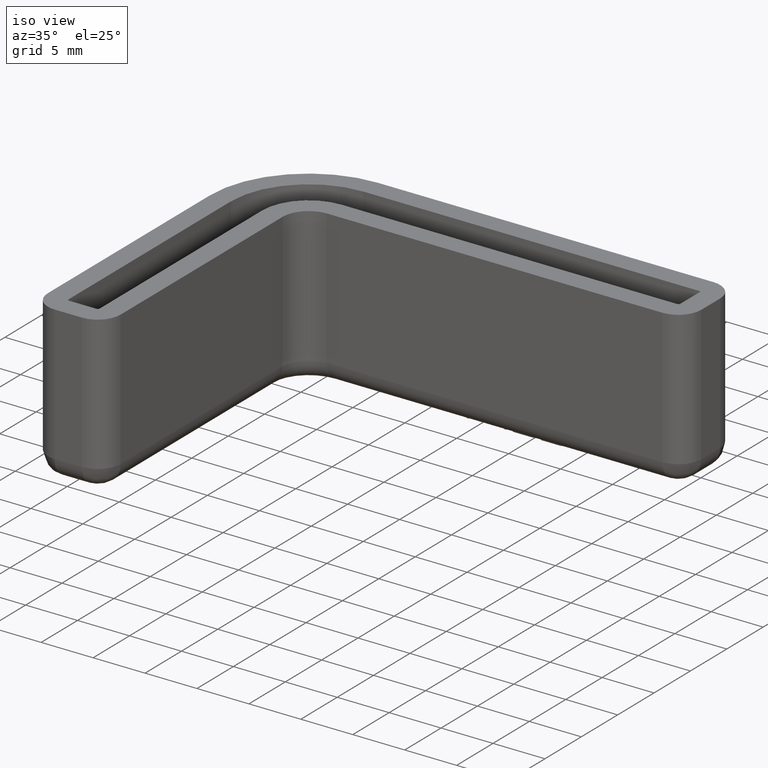
[diagram: clean part render]
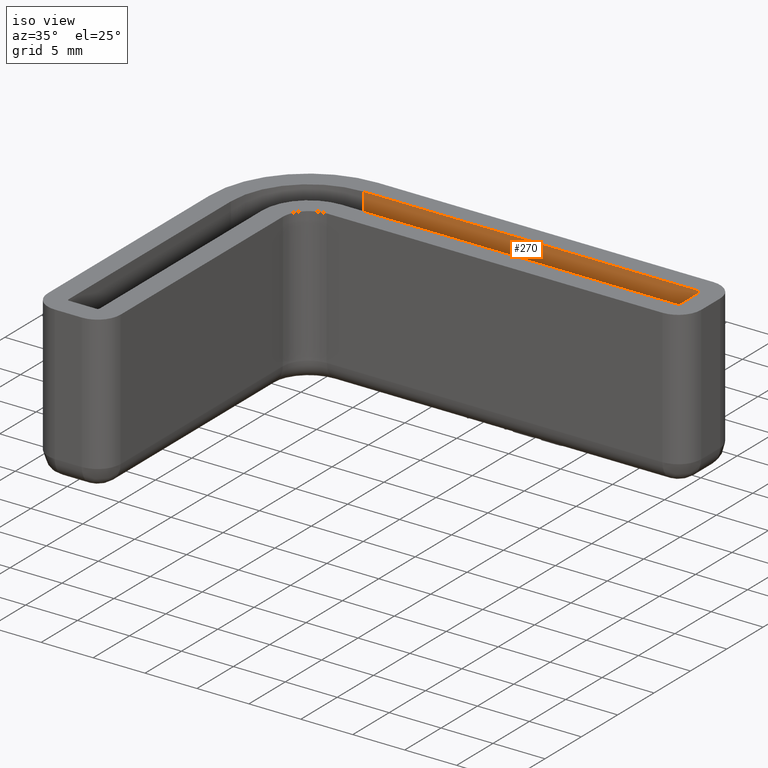
[diagram: same view with one face highlighted and labeled with its STEP entity id]
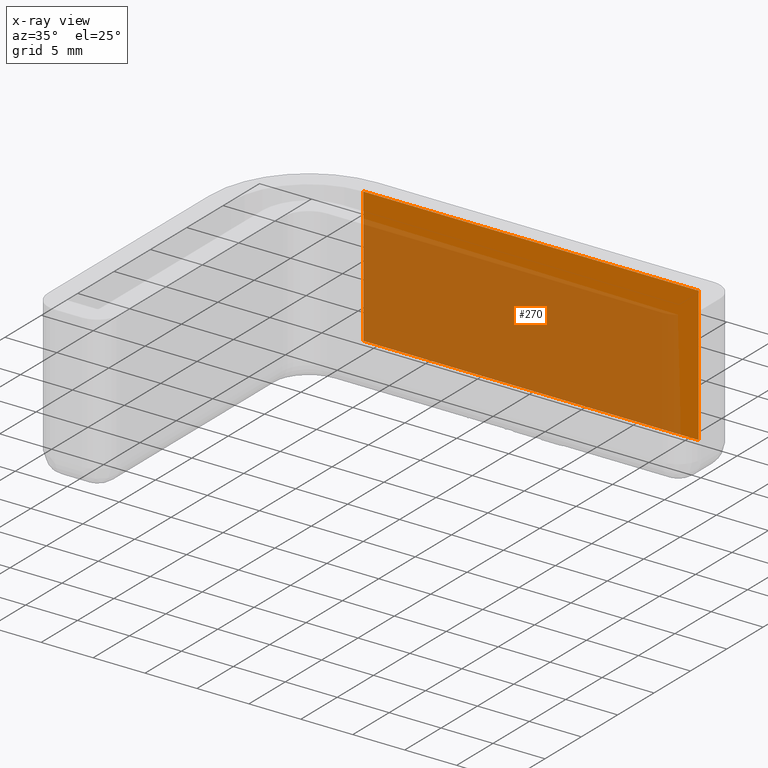
[diagram: x-ray of the same camera — body ghosted, the highlighted face saturated]
A machine part, iso view. The second image highlights one B-rep face of the part: STEP entity #270.
The next image is the same camera in x-ray: the body ghosted, the highlighted face saturated — about 76% of this face is hidden behind the body in this view.
In plain terms, the highlighted planar face has unit normal (0, -1, 0).
Its self-contained STEP definition (entity closure, byte-faithful):
#270 = ADVANCED_FACE( '', ( #332 ), #333, .T. );
#332 = FACE_OUTER_BOUND( '', #448, .T. );
#333 = PLANE( '', #449 );
#448 = EDGE_LOOP( '', ( #696, #697, #698, #699 ) );
#449 = AXIS2_PLACEMENT_3D( '', #700, #701, #702 );
#696 = ORIENTED_EDGE( '', *, *, #1194, .T. );
#697 = ORIENTED_EDGE( '', *, *, #1195, .F. );
#698 = ORIENTED_EDGE( '', *, *, #1191, .F. );
#699 = ORIENTED_EDGE( '', *, *, #1176, .F. );
#700 = CARTESIAN_POINT( '', ( 39.8000000000000, 0.000000000000000, 30.0000000000000 ) );
#701 = DIRECTION( '', ( 0.000000000000000, -1.00000000000000, 0.000000000000000 ) );
#702 = DIRECTION( '', ( 1.00000000000000, 0.000000000000000, 0.000000000000000 ) );
#1176 = EDGE_CURVE( '', #1313, #1314, #1315, .T. );
#1191 = EDGE_CURVE( '', #1314, #1342, #1343, .T. );
#1194 = EDGE_CURVE( '', #1313, #1347, #1348, .T. );
#1195 = EDGE_CURVE( '', #1342, #1347, #1349, .T. );
#1313 = VERTEX_POINT( '', #1524 );
#1314 = VERTEX_POINT( '', #1525 );
#1315 = LINE( '', #1526, #1527 );
#1342 = VERTEX_POINT( '', #1561 );
#1343 = LINE( '', #1562, #1563 );
#1347 = VERTEX_POINT( '', #1568 );
#1348 = LINE( '', #1569, #1570 );
#1349 = LINE( '', #1571, #1572 );
#1524 = CARTESIAN_POINT( '', ( 7.50000000000001, -1.92592994438724E-031, 0.000000000000000 ) );
#1525 = CARTESIAN_POINT( '', ( 39.8000000000000, 0.000000000000000, 0.000000000000000 ) );
#1526 = CARTESIAN_POINT( '', ( 39.8000000000000, -2.48824398585402E-018, 0.000000000000000 ) );
#1527 = VECTOR( '', #2006, 1000.00000000000 );
#1561 = CARTESIAN_POINT( '', ( 39.8000000000000, 0.000000000000000, -13.0000000000000 ) );
#1562 = CARTESIAN_POINT( '', ( 39.8000000000000, 0.000000000000000, 30.0000000000000 ) );
#1563 = VECTOR( '', #2035, 1000.00000000000 );
#1568 = CARTESIAN_POINT( '', ( 7.50000000000001, -1.92592994438724E-031, -13.0000000000000 ) );
#1569 = CARTESIAN_POINT( '', ( 7.50000000000001, -1.92592994438724E-031, 30.0000000000000 ) );
#1570 = VECTOR( '', #2040, 1000.00000000000 );
#1571 = CARTESIAN_POINT( '', ( 39.8000000000000, 0.000000000000000, -13.0000000000000 ) );
#1572 = VECTOR( '', #2041, 1000.00000000000 );
#2006 = DIRECTION( '', ( 1.00000000000000, 0.000000000000000, 0.000000000000000 ) );
#2035 = DIRECTION( '', ( 0.000000000000000, 0.000000000000000, -1.00000000000000 ) );
#2040 = DIRECTION( '', ( 0.000000000000000, 0.000000000000000, -1.00000000000000 ) );
#2041 = DIRECTION( '', ( -1.00000000000000, 0.000000000000000, 0.000000000000000 ) );